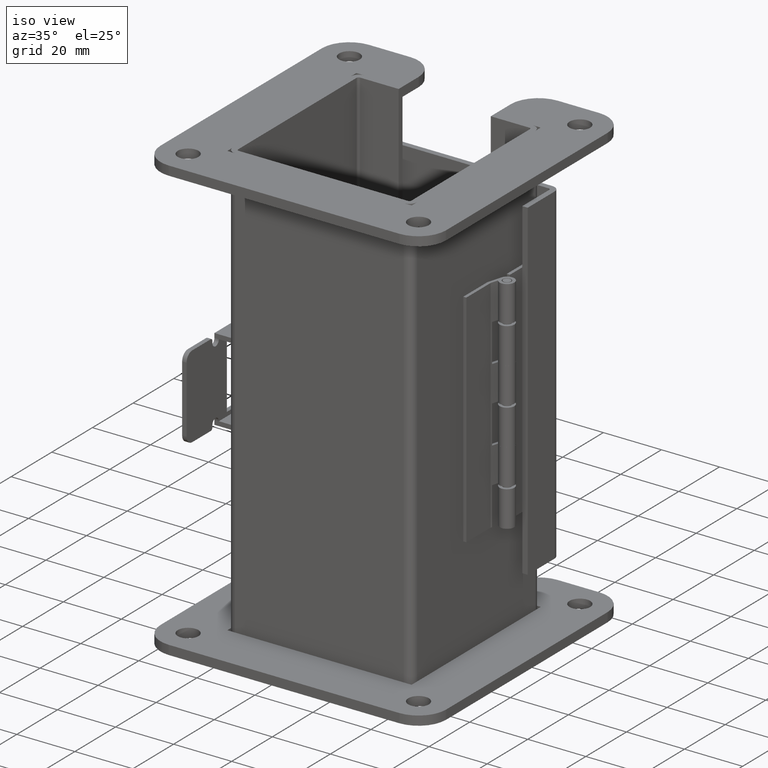
[diagram: clean part render]
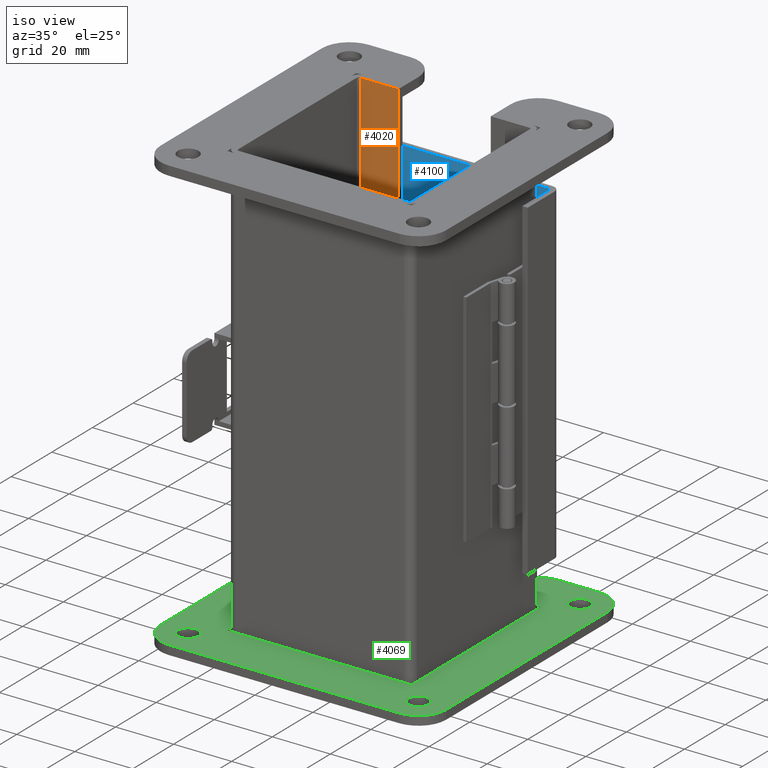
[diagram: same view with three faces highlighted in distinct colors, each labeled with its STEP entity id]
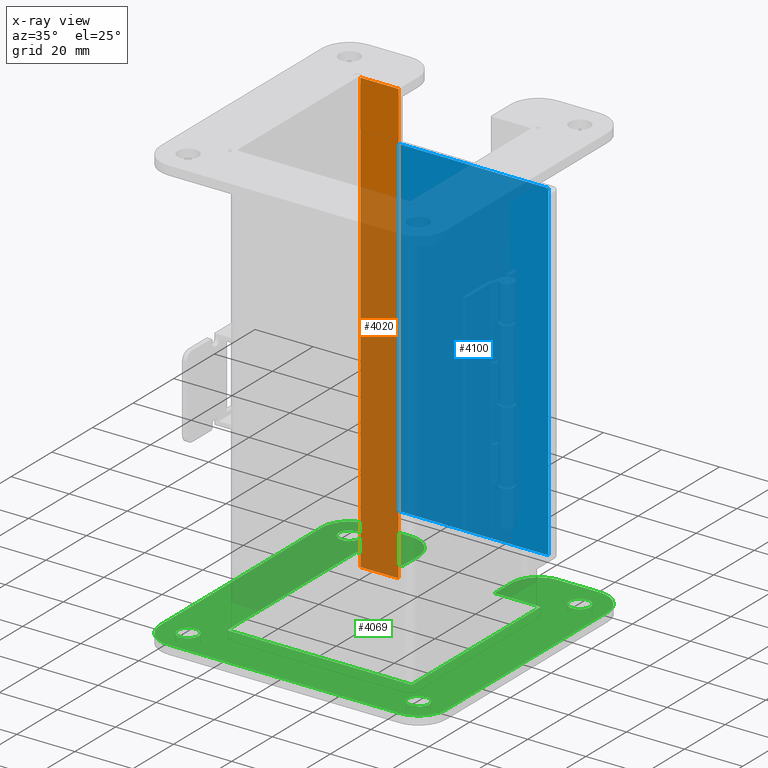
[diagram: x-ray of the same camera — body ghosted, the three highlighted faces saturated]
A machine part, iso view with three faces highlighted in distinct colors.
The next image is the same camera in x-ray (body ghosted, the three faces saturated) — at least one of them is partly hidden behind the body in this view.
Their STEP definitions:

[orange] entity #4020 — the highlighted planar face has unit normal (-0, -1, 0).
#175=PLANE('',#4273);
#331=FACE_OUTER_BOUND('',#566,.T.);
#566=EDGE_LOOP('',(#2749,#2750,#2751,#2752));
#1026=LINE('',#5951,#1416);
#1029=LINE('',#5957,#1419);
#1030=LINE('',#5959,#1420);
#1031=LINE('',#5960,#1421);
#1416=VECTOR('',#4727,0.519749999999999);
#1419=VECTOR('',#4732,6.);
#1420=VECTOR('',#4733,0.519749999999999);
#1421=VECTOR('',#4734,6.);
#1803=VERTEX_POINT('',#5948);
#1804=VERTEX_POINT('',#5950);
#1806=VERTEX_POINT('',#5956);
#1807=VERTEX_POINT('',#5958);
#2178=EDGE_CURVE('',#1804,#1803,#1026,.T.);
#2181=EDGE_CURVE('',#1803,#1806,#1029,.T.);
#2182=EDGE_CURVE('',#1807,#1806,#1030,.T.);
#2183=EDGE_CURVE('',#1807,#1804,#1031,.T.);
#2749=ORIENTED_EDGE('',*,*,#2181,.T.);
#2750=ORIENTED_EDGE('',*,*,#2182,.F.);
#2751=ORIENTED_EDGE('',*,*,#2183,.T.);
#2752=ORIENTED_EDGE('',*,*,#2178,.T.);
#4020=ADVANCED_FACE('',(#331),#175,.T.);
#4273=AXIS2_PLACEMENT_3D('',#5955,#4730,#4731);
#4727=DIRECTION('',(-1.,1.74604780313005E-16,7.06000431630561E-15));
#4730=DIRECTION('center_axis',(-7.19891840210076E-15,-1.11313076938421E-16,
-1.));
#4731=DIRECTION('ref_axis',(-1.,3.49443051907518E-16,6.76791955811495E-15));
#4732=DIRECTION('',(1.74604780313004E-16,1.,-1.11313076938422E-16));
#4733=DIRECTION('',(-1.,1.74604780313006E-16,1.46169835518914E-14));
#4734=DIRECTION('',(-2.32884204177841E-16,-1.,1.45932050943604E-16));
#5948=CARTESIAN_POINT('',(-1.14475000000001,-3.,2.426));
#5950=CARTESIAN_POINT('',(-0.625000000000007,-3.,2.42599999999999));
#5951=CARTESIAN_POINT('',(-1.29011777526691,-3.,2.426));
#5955=CARTESIAN_POINT('Origin',(-0.921216943816733,4.03160016569314E-17,
2.426));
#5956=CARTESIAN_POINT('',(-1.14475,3.,2.426));
#5957=CARTESIAN_POINT('',(-1.14475000000001,-1.35995971148856E-16,2.426));
#5958=CARTESIAN_POINT('',(-0.625000000000005,3.,2.42599999999999));
#5959=CARTESIAN_POINT('',(-1.29011777526691,3.,2.426));
#5960=CARTESIAN_POINT('',(-0.625000000000005,3.,2.42599999999999));

[blue] entity #4100 — the highlighted planar face has unit normal (-0, 1, -0).
#234=PLANE('',#4397);
#411=FACE_OUTER_BOUND('',#658,.T.);
#658=EDGE_LOOP('',(#3097,#3098,#3099,#3100));
#1124=LINE('',#6223,#1514);
#1127=LINE('',#6229,#1517);
#1155=LINE('',#6301,#1545);
#1156=LINE('',#6303,#1546);
#1514=VECTOR('',#5017,4.5);
#1517=VECTOR('',#5022,2.5395);
#1545=VECTOR('',#5102,4.5);
#1546=VECTOR('',#5105,2.5395);
#1880=VERTEX_POINT('',#6208);
#1881=VERTEX_POINT('',#6212);
#1884=VERTEX_POINT('',#6227);
#1902=VERTEX_POINT('',#6296);
#2310=EDGE_CURVE('',#1880,#1881,#1124,.T.);
#2313=EDGE_CURVE('',#1881,#1884,#1127,.T.);
#2349=EDGE_CURVE('',#1884,#1902,#1155,.T.);
#2350=EDGE_CURVE('',#1902,#1880,#1156,.T.);
#3097=ORIENTED_EDGE('',*,*,#2310,.T.);
#3098=ORIENTED_EDGE('',*,*,#2313,.T.);
#3099=ORIENTED_EDGE('',*,*,#2349,.T.);
#3100=ORIENTED_EDGE('',*,*,#2350,.T.);
#4100=ADVANCED_FACE('',(#411),#234,.F.);
#4397=AXIS2_PLACEMENT_3D('',#6304,#5106,#5107);
#5017=DIRECTION('',(1.,0.,-1.554117969729E-16));
#5022=DIRECTION('',(-2.54310213228382E-16,0.,1.));
#5102=DIRECTION('',(-1.,0.,0.));
#5105=DIRECTION('',(2.54310213228382E-16,0.,-1.));
#5106=DIRECTION('center_axis',(0.,1.,0.));
#5107=DIRECTION('ref_axis',(0.,0.,1.));
#6208=CARTESIAN_POINT('',(-2.25,0.,-1.26975));
#6212=CARTESIAN_POINT('',(2.25,0.,-1.26975));
#6223=CARTESIAN_POINT('',(1.125,0.,-1.26975));
#6227=CARTESIAN_POINT('',(2.25,0.,1.26975));
#6229=CARTESIAN_POINT('',(2.25,0.,-1.375));
#6296=CARTESIAN_POINT('',(-2.25,0.,1.26975));
#6301=CARTESIAN_POINT('',(-1.125,0.,1.26975));
#6303=CARTESIAN_POINT('',(-2.25,0.,1.375));
#6304=CARTESIAN_POINT('Origin',(-8.74191357972564E-16,0.,-7.2346871004626E-16));

[green] entity #4069 — the highlighted planar face has unit normal (-0, 0, 1).
#79=FACE_BOUND('',#620,.T.);
#80=FACE_BOUND('',#621,.T.);
#81=FACE_BOUND('',#622,.T.);
#82=FACE_BOUND('',#623,.T.);
#209=PLANE('',#4353);
#380=FACE_OUTER_BOUND('',#619,.T.);
#619=EDGE_LOOP('',(#2937,#2938,#2939,#2940,#2941,#2942,#2943,#2944,#2945,
#2946,#2947,#2948,#2949,#2950,#2951,#2952,#2953,#2954));
#620=EDGE_LOOP('',(#2955));
#621=EDGE_LOOP('',(#2956));
#622=EDGE_LOOP('',(#2957));
#623=EDGE_LOOP('',(#2958));
#865=CIRCLE('',#4312,0.140625);
#867=CIRCLE('',#4315,0.140625);
#869=CIRCLE('',#4318,0.140625);
#871=CIRCLE('',#4321,0.140625);
#873=CIRCLE('',#4327,0.375);
#875=CIRCLE('',#4331,0.375);
#877=CIRCLE('',#4335,0.375);
#879=CIRCLE('',#4339,0.375000000000001);
#881=CIRCLE('',#4343,0.375000000000001);
#883=CIRCLE('',#4347,0.375);
#1067=LINE('',#6075,#1457);
#1071=LINE('',#6083,#1461);
#1074=LINE('',#6089,#1464);
#1078=LINE('',#6101,#1468);
#1082=LINE('',#6113,#1472);
#1086=LINE('',#6125,#1476);
#1090=LINE('',#6137,#1480);
#1094=LINE('',#6149,#1484);
#1098=LINE('',#6161,#1488);
#1101=LINE('',#6167,#1491);
#1104=LINE('',#6173,#1494);
#1107=LINE('',#6178,#1497);
#1457=VECTOR('',#4870,2.5);
#1461=VECTOR('',#4876,0.625);
#1464=VECTOR('',#4881,0.312499999999999);
#1468=VECTOR('',#4893,0.562500000000001);
#1472=VECTOR('',#4905,3.125);
#1476=VECTOR('',#4917,3.125);
#1480=VECTOR('',#4929,3.125);
#1484=VECTOR('',#4941,0.562499999999999);
#1488=VECTOR('',#4953,0.312499999999999);
#1491=VECTOR('',#4958,0.625000000000001);
#1494=VECTOR('',#4963,2.5);
#1497=VECTOR('',#4968,2.5);
#1827=VERTEX_POINT('',#6053);
#1829=VERTEX_POINT('',#6058);
#1831=VERTEX_POINT('',#6063);
#1833=VERTEX_POINT('',#6068);
#1835=VERTEX_POINT('',#6073);
#1836=VERTEX_POINT('',#6074);
#1839=VERTEX_POINT('',#6082);
#1841=VERTEX_POINT('',#6088);
#1843=VERTEX_POINT('',#6094);
#1845=VERTEX_POINT('',#6100);
#1847=VERTEX_POINT('',#6106);
#1849=VERTEX_POINT('',#6112);
#1851=VERTEX_POINT('',#6118);
#1853=VERTEX_POINT('',#6124);
#1855=VERTEX_POINT('',#6130);
#1857=VERTEX_POINT('',#6136);
#1859=VERTEX_POINT('',#6142);
#1861=VERTEX_POINT('',#6148);
#1863=VERTEX_POINT('',#6154);
#1865=VERTEX_POINT('',#6160);
#1867=VERTEX_POINT('',#6166);
#1869=VERTEX_POINT('',#6172);
#2229=EDGE_CURVE('',#1827,#1827,#865,.T.);
#2231=EDGE_CURVE('',#1829,#1829,#867,.T.);
#2233=EDGE_CURVE('',#1831,#1831,#869,.T.);
#2235=EDGE_CURVE('',#1833,#1833,#871,.T.);
#2237=EDGE_CURVE('',#1835,#1836,#1067,.T.);
#2241=EDGE_CURVE('',#1836,#1839,#1071,.T.);
#2244=EDGE_CURVE('',#1839,#1841,#1074,.T.);
#2247=EDGE_CURVE('',#1841,#1843,#873,.T.);
#2250=EDGE_CURVE('',#1843,#1845,#1078,.T.);
#2253=EDGE_CURVE('',#1845,#1847,#875,.T.);
#2256=EDGE_CURVE('',#1847,#1849,#1082,.T.);
#2259=EDGE_CURVE('',#1849,#1851,#877,.T.);
#2262=EDGE_CURVE('',#1851,#1853,#1086,.T.);
#2265=EDGE_CURVE('',#1853,#1855,#879,.T.);
#2268=EDGE_CURVE('',#1855,#1857,#1090,.T.);
#2271=EDGE_CURVE('',#1857,#1859,#881,.T.);
#2274=EDGE_CURVE('',#1859,#1861,#1094,.T.);
#2277=EDGE_CURVE('',#1861,#1863,#883,.T.);
#2280=EDGE_CURVE('',#1863,#1865,#1098,.T.);
#2283=EDGE_CURVE('',#1865,#1867,#1101,.T.);
#2286=EDGE_CURVE('',#1867,#1869,#1104,.T.);
#2289=EDGE_CURVE('',#1869,#1835,#1107,.T.);
#2937=ORIENTED_EDGE('',*,*,#2237,.F.);
#2938=ORIENTED_EDGE('',*,*,#2289,.F.);
#2939=ORIENTED_EDGE('',*,*,#2286,.F.);
#2940=ORIENTED_EDGE('',*,*,#2283,.F.);
#2941=ORIENTED_EDGE('',*,*,#2280,.F.);
#2942=ORIENTED_EDGE('',*,*,#2277,.F.);
#2943=ORIENTED_EDGE('',*,*,#2274,.F.);
#2944=ORIENTED_EDGE('',*,*,#2271,.F.);
#2945=ORIENTED_EDGE('',*,*,#2268,.F.);
#2946=ORIENTED_EDGE('',*,*,#2265,.F.);
#2947=ORIENTED_EDGE('',*,*,#2262,.F.);
#2948=ORIENTED_EDGE('',*,*,#2259,.F.);
#2949=ORIENTED_EDGE('',*,*,#2256,.F.);
#2950=ORIENTED_EDGE('',*,*,#2253,.F.);
#2951=ORIENTED_EDGE('',*,*,#2250,.F.);
#2952=ORIENTED_EDGE('',*,*,#2247,.F.);
#2953=ORIENTED_EDGE('',*,*,#2244,.F.);
#2954=ORIENTED_EDGE('',*,*,#2241,.F.);
#2955=ORIENTED_EDGE('',*,*,#2229,.T.);
#2956=ORIENTED_EDGE('',*,*,#2231,.T.);
#2957=ORIENTED_EDGE('',*,*,#2233,.T.);
#2958=ORIENTED_EDGE('',*,*,#2235,.T.);
#4069=ADVANCED_FACE('',(#380,#79,#80,#81,#82),#209,.T.);
#4312=AXIS2_PLACEMENT_3D('',#6054,#4846,#4847);
#4315=AXIS2_PLACEMENT_3D('',#6059,#4852,#4853);
#4318=AXIS2_PLACEMENT_3D('',#6064,#4858,#4859);
#4321=AXIS2_PLACEMENT_3D('',#6069,#4864,#4865);
#4327=AXIS2_PLACEMENT_3D('',#6095,#4886,#4887);
#4331=AXIS2_PLACEMENT_3D('',#6107,#4898,#4899);
#4335=AXIS2_PLACEMENT_3D('',#6119,#4910,#4911);
#4339=AXIS2_PLACEMENT_3D('',#6131,#4922,#4923);
#4343=AXIS2_PLACEMENT_3D('',#6143,#4934,#4935);
#4347=AXIS2_PLACEMENT_3D('',#6155,#4946,#4947);
#4353=AXIS2_PLACEMENT_3D('',#6180,#4970,#4971);
#4846=DIRECTION('center_axis',(0.,0.,-1.));
#4847=DIRECTION('ref_axis',(-1.,0.,0.));
#4852=DIRECTION('center_axis',(0.,0.,-1.));
#4853=DIRECTION('ref_axis',(-1.,0.,0.));
#4858=DIRECTION('center_axis',(0.,0.,-1.));
#4859=DIRECTION('ref_axis',(-1.,0.,0.));
#4864=DIRECTION('center_axis',(0.,0.,-1.));
#4865=DIRECTION('ref_axis',(-1.,0.,0.));
#4870=DIRECTION('',(-2.79741234551221E-16,1.,0.));
#4876=DIRECTION('',(-1.,0.,0.));
#4881=DIRECTION('',(0.,1.,0.));
#4886=DIRECTION('center_axis',(0.,0.,-1.));
#4887=DIRECTION('ref_axis',(0.,-1.,0.));
#4893=DIRECTION('',(1.,0.,0.));
#4898=DIRECTION('center_axis',(0.,0.,-1.));
#4899=DIRECTION('ref_axis',(-1.,9.32470781837401E-16,0.));
#4905=DIRECTION('',(0.,-1.,0.));
#4910=DIRECTION('center_axis',(0.,0.,-1.));
#4911=DIRECTION('ref_axis',(-1.8649415636748E-15,1.,0.));
#4917=DIRECTION('',(-1.,-1.11896493820488E-16,0.));
#4922=DIRECTION('center_axis',(0.,0.,-1.));
#4923=DIRECTION('ref_axis',(1.,4.66235390918701E-16,0.));
#4929=DIRECTION('',(1.11896493820488E-16,1.,0.));
#4934=DIRECTION('center_axis',(0.,0.,-1.));
#4935=DIRECTION('ref_axis',(9.32470781837401E-16,-1.,0.));
#4941=DIRECTION('',(1.,-6.21647187891602E-16,0.));
#4946=DIRECTION('center_axis',(0.,0.,-1.));
#4947=DIRECTION('ref_axis',(-1.,-9.32470781837401E-16,0.));
#4953=DIRECTION('',(0.,-1.,0.));
#4958=DIRECTION('',(-1.,0.,0.));
#4963=DIRECTION('',(4.19611851826831E-16,-1.,0.));
#4968=DIRECTION('',(1.,-1.3987061727561E-16,0.));
#4970=DIRECTION('center_axis',(0.,0.,1.));
#4971=DIRECTION('ref_axis',(1.,0.,0.));
#6053=CARTESIAN_POINT('',(-1.421875,1.5625,0.125));
#6054=CARTESIAN_POINT('Origin',(-1.5625,1.5625,0.125));
#6058=CARTESIAN_POINT('',(-1.421875,-1.5625,0.125));
#6059=CARTESIAN_POINT('Origin',(-1.5625,-1.5625,0.125));
#6063=CARTESIAN_POINT('',(1.703125,-1.5625,0.125));
#6064=CARTESIAN_POINT('Origin',(1.5625,-1.5625,0.125));
#6068=CARTESIAN_POINT('',(1.703125,1.5625,0.125));
#6069=CARTESIAN_POINT('Origin',(1.5625,1.5625,0.125));
#6073=CARTESIAN_POINT('',(1.25,-1.25,0.125));
#6074=CARTESIAN_POINT('',(1.25,1.25,0.125));
#6075=CARTESIAN_POINT('',(1.25,-1.25,0.125));
#6082=CARTESIAN_POINT('',(0.624999999999999,1.25,0.125));
#6083=CARTESIAN_POINT('',(1.25,1.25,0.125));
#6088=CARTESIAN_POINT('',(0.624999999999999,1.5625,0.125));
#6089=CARTESIAN_POINT('',(0.624999999999999,1.25,0.125));
#6094=CARTESIAN_POINT('',(0.999999999999999,1.9375,0.125));
#6095=CARTESIAN_POINT('Origin',(0.999999999999999,1.5625,0.125));
#6100=CARTESIAN_POINT('',(1.5625,1.9375,0.125));
#6101=CARTESIAN_POINT('',(0.999999999999999,1.9375,0.125));
#6106=CARTESIAN_POINT('',(1.9375,1.5625,0.125));
#6107=CARTESIAN_POINT('Origin',(1.5625,1.5625,0.125));
#6112=CARTESIAN_POINT('',(1.9375,-1.5625,0.125));
#6113=CARTESIAN_POINT('',(1.9375,1.5625,0.125));
#6118=CARTESIAN_POINT('',(1.5625,-1.9375,0.125));
#6119=CARTESIAN_POINT('Origin',(1.5625,-1.5625,0.125));
#6124=CARTESIAN_POINT('',(-1.5625,-1.9375,0.125));
#6125=CARTESIAN_POINT('',(1.5625,-1.9375,0.125));
#6130=CARTESIAN_POINT('',(-1.9375,-1.5625,0.125));
#6131=CARTESIAN_POINT('Origin',(-1.5625,-1.5625,0.125));
#6136=CARTESIAN_POINT('',(-1.9375,1.5625,0.125));
#6137=CARTESIAN_POINT('',(-1.9375,-1.5625,0.125));
#6142=CARTESIAN_POINT('',(-1.5625,1.9375,0.125));
#6143=CARTESIAN_POINT('Origin',(-1.5625,1.5625,0.125));
#6148=CARTESIAN_POINT('',(-1.,1.9375,0.125));
#6149=CARTESIAN_POINT('',(-1.5625,1.9375,0.125));
#6154=CARTESIAN_POINT('',(-0.624999999999999,1.5625,0.125));
#6155=CARTESIAN_POINT('Origin',(-1.,1.5625,0.125));
#6160=CARTESIAN_POINT('',(-0.624999999999999,1.25,0.125));
#6161=CARTESIAN_POINT('',(-0.624999999999999,1.5625,0.125));
#6166=CARTESIAN_POINT('',(-1.25,1.25,0.125));
#6167=CARTESIAN_POINT('',(-0.624999999999999,1.25,0.125));
#6172=CARTESIAN_POINT('',(-1.25,-1.25,0.125));
#6173=CARTESIAN_POINT('',(-1.25,1.25,0.125));
#6178=CARTESIAN_POINT('',(-1.25,-1.25,0.125));
#6180=CARTESIAN_POINT('Origin',(3.7153132713834E-16,-0.104342316372642,
0.125));